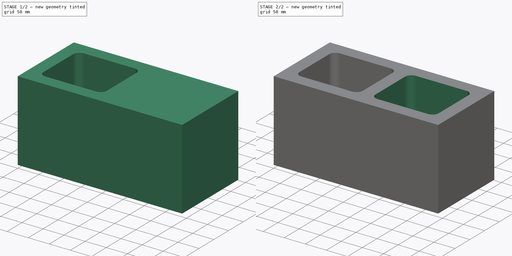
[diagram: build sequence overview — one tinted view per stage of 2, left to right]
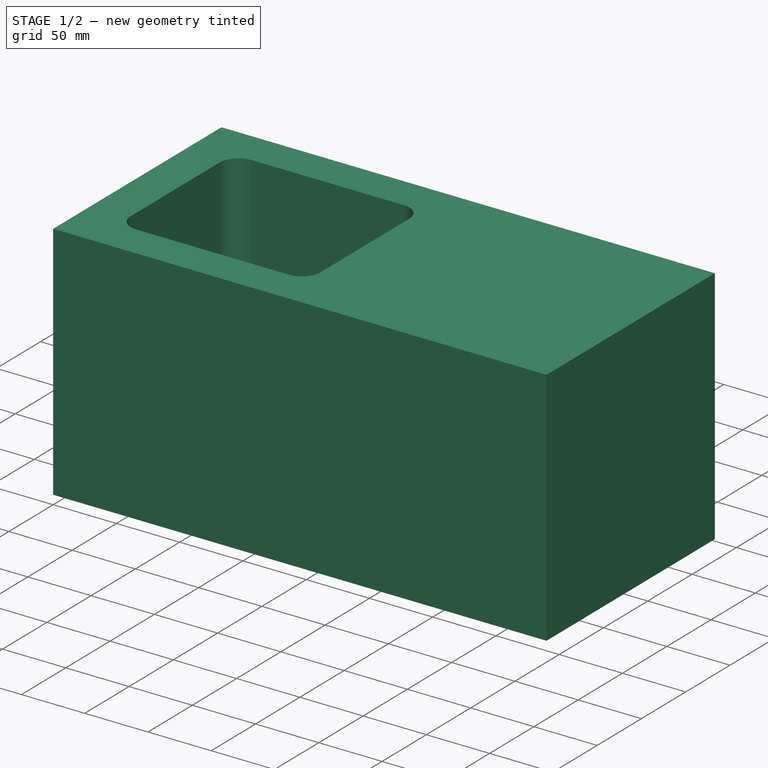
[diagram: stage 1 of 2 — iso view after this stage's code; geometry added in this stage tinted green]
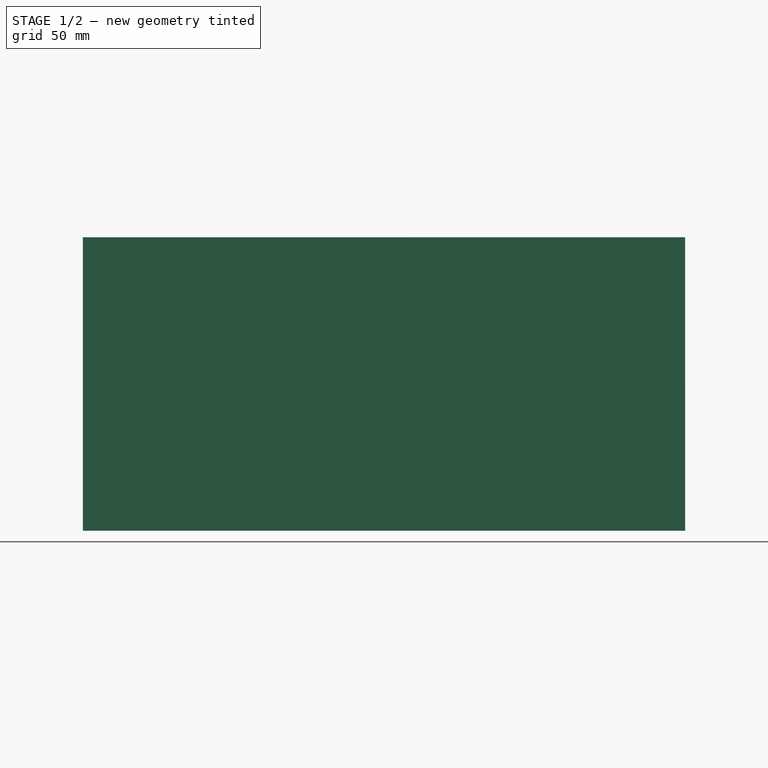
[diagram: stage 1 of 2 — front view after this stage's code; geometry added in this stage tinted green]
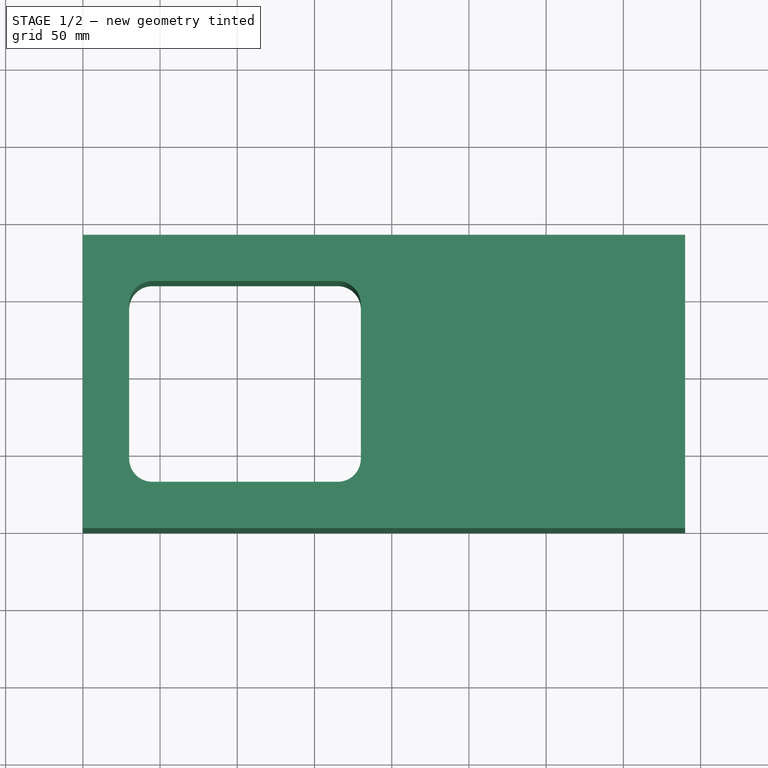
[diagram: stage 1 of 2 — top view after this stage's code; geometry added in this stage tinted green]
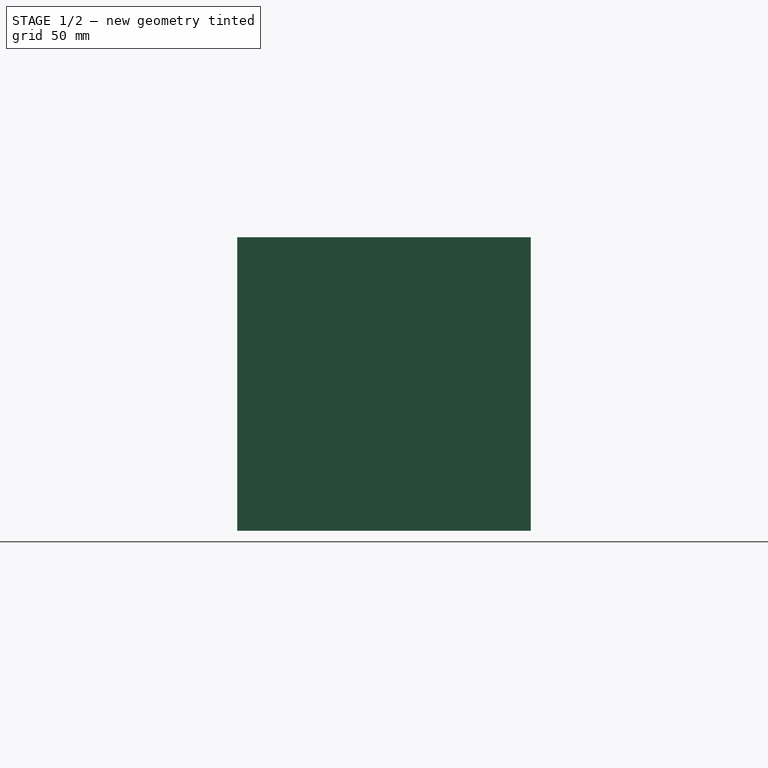
[diagram: stage 1 of 2 — right view after this stage's code; geometry added in this stage tinted green]
FCSTD DOCUMENT  (FreeCAD 0.17R10000 (Git))
Label:  Concrete block
License: All rights reserved
LicenseURL: http://en.wikipedia.org/wiki/All_rights_reserved
objects: Sketcher::SketchObject×2, PartDesign::Pad×1, PartDesign::Pocket×1, PartDesign::LinearPattern×1, PartDesign::Body×1
note: 8 computed .brp shape members not serialized (recipe doc carries the construction recipe); baked Part::Feature solids carry a one-line shape summary decoded from their .brp

FEATURE [Sketcher::SketchObject] Sketch
  MapMode = 5
  Support = -> [XY_Plane]
  sketch-geometry (4):
    g0: LineSegment StartX=0 StartY=0 StartZ=0 EndX=390 EndY=0 EndZ=0
    g1: LineSegment StartX=390 StartY=0 StartZ=0 EndX=390 EndY=190 EndZ=0
    g2: LineSegment StartX=390 StartY=190 StartZ=0 EndX=0 EndY=190 EndZ=0
    g3: LineSegment StartX=0 StartY=190 StartZ=0 EndX=0 EndY=0 EndZ=0
  constraints (11):
    c: Coincident(g0,g1)
    c: Coincident(g1,g2)
    c: Coincident(g2,g3)
    c: Coincident(g3,g0)
    c: Horizontal(g0)
    c: Horizontal(g2)
    c: Vertical(g1)
    c: Vertical(g3)
    c: Coincident(g0,g-1)
    c: DistanceX(g2,g2) = 390  'Length'
    c: DistanceY(g3,g3) = 190  'Width'
FEATURE [PartDesign::Pad] Pad
  Length = 190
  Length2 = 100
  Profile = -> Sketch
  Type = 0
FEATURE [Sketcher::SketchObject] Sketch001
  ExternalGeometry = -> [Pad]
  MapMode = 5
  Placement = pos=(0,0,190) rot=(0,0,1;0rad)
  Support = -> [Pad]
  expr: Constraints[20] = (Sketch.Constraints.Length - 9cm) / 2
  sketch-geometry (8):
    g0: LineSegment StartX=45 StartY=30 StartZ=0 EndX=165 EndY=30 EndZ=0
    g1: ArcOfCircle CenterX=165 CenterY=45 CenterZ=0 NormalX=0 NormalY=0 NormalZ=1 Radius=15 StartAngle=4.71239 EndAngle=6.28319
    g2: LineSegment StartX=180 StartY=45 StartZ=0 EndX=180 EndY=145 EndZ=0
    g3: ArcOfCircle CenterX=165 CenterY=145 CenterZ=0 NormalX=0 NormalY=0 NormalZ=1 Radius=15 StartAngle=0 EndAngle=1.5708
    g4: LineSegment StartX=165 StartY=160 StartZ=0 EndX=45 EndY=160 EndZ=0
    g5: ArcOfCircle CenterX=45 CenterY=145 CenterZ=0 NormalX=0 NormalY=0 NormalZ=1 Radius=15 StartAngle=1.5708 EndAngle=3.14159
    g6: LineSegment StartX=30 StartY=145 StartZ=0 EndX=30 EndY=45 EndZ=0
    g7: ArcOfCircle CenterX=45 CenterY=45 CenterZ=0 NormalX=0 NormalY=0 NormalZ=1 Radius=15 StartAngle=3.14159 EndAngle=4.71239
  constraints (21):
    c: Horizontal(g0)
    c: Tangent(g0,g1) = -1.5708
    c: Tangent(g1,g2) = -1.5708
    c: Tangent(g2,g3) = -1.5708
    c: Tangent(g3,g4) = -1.5708
    c: Tangent(g4,g5) = -1.5708
    c: Tangent(g5,g6) = -1.5708
    c: Tangent(g6,g7) = -1.5708
    c: Coincident(g7,g0)
    c: Vertical(g6)
    c: Horizontal(g4)
    c: Vertical(g2)
    c: Equal(g5,g3)
    c: Equal(g3,g7)
    c: Equal(g7,g1)
    c: Tangent(g7,g0,g0) = -1.5708
    c: Radius(g7) = 15
    c: DistanceY(g4,g-4) = 30
    c: DistanceY(g-1,g0) = 30
    c: DistanceX(g-4,g5) = 30
    c: DistanceX(g6,g1) = 150
FEATURE [PartDesign::Pocket] Pocket
  BaseFeature = -> Pad
  Length = 190
  Profile = -> Sketch001
  Type = 0
  expr: Length = Pad.Length
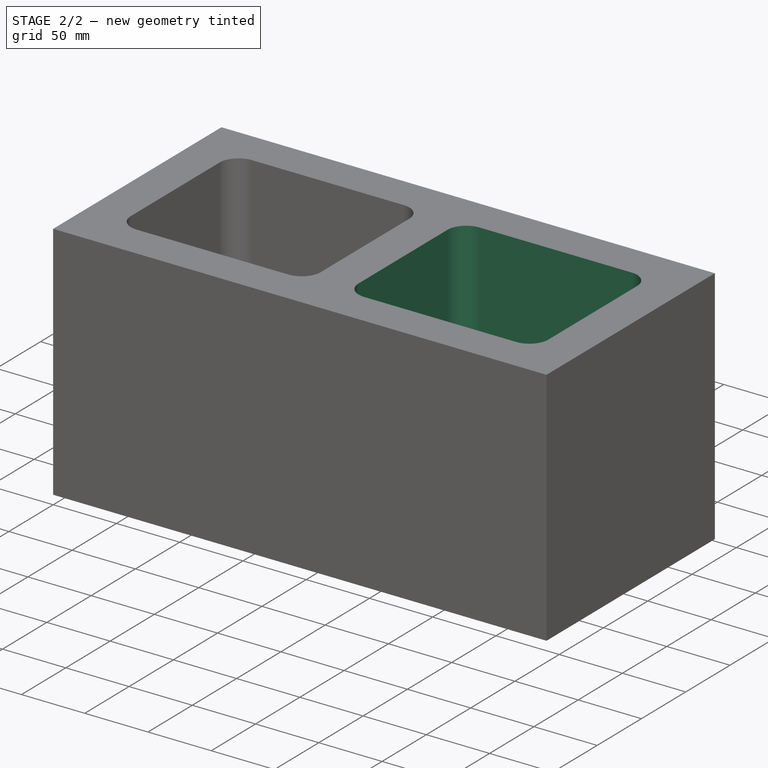
[diagram: stage 2 of 2 — iso view after this stage's code; geometry added in this stage tinted green]
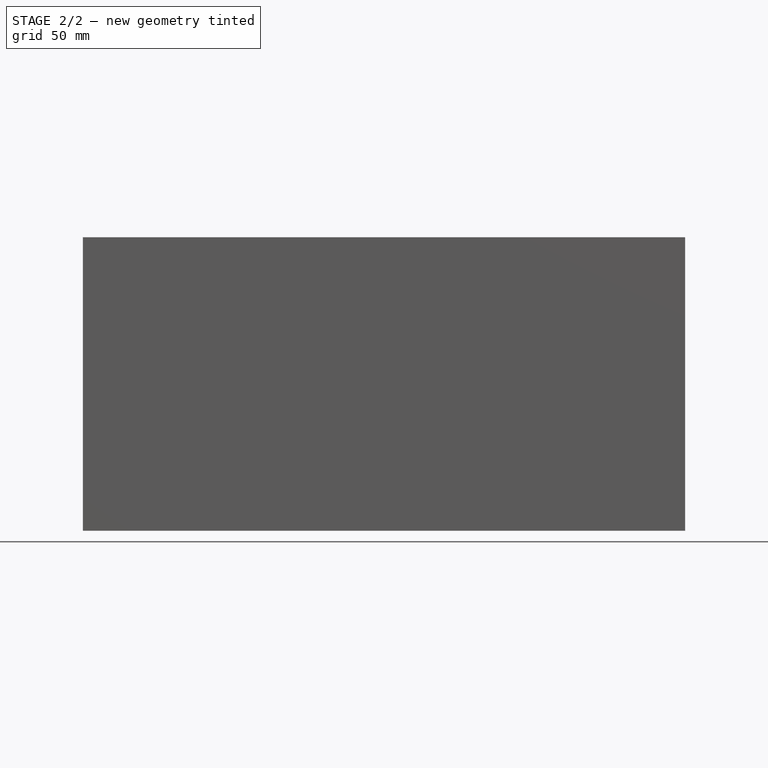
[diagram: stage 2 of 2 — front view after this stage's code; geometry added in this stage tinted green]
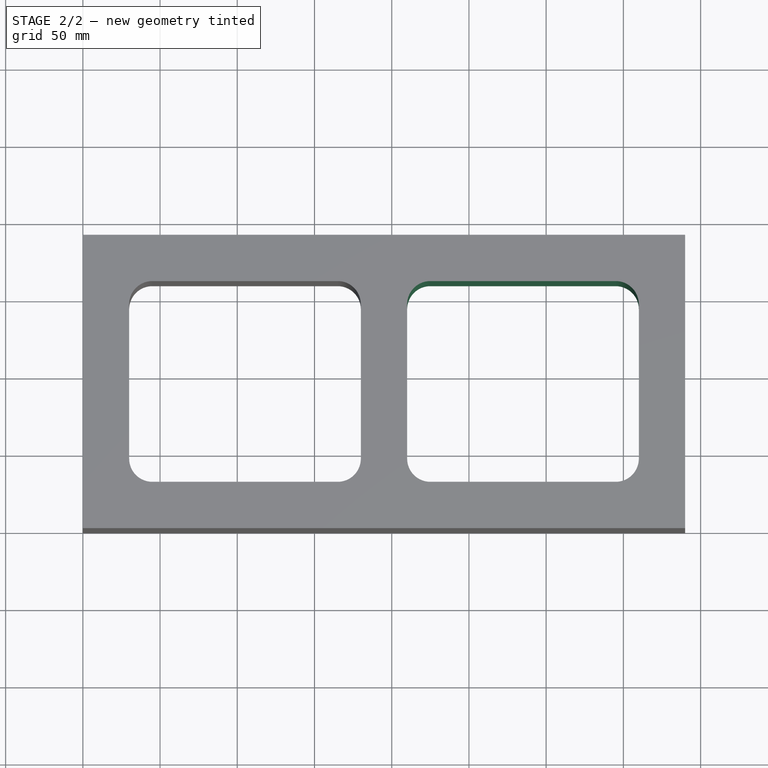
[diagram: stage 2 of 2 — top view after this stage's code; geometry added in this stage tinted green]
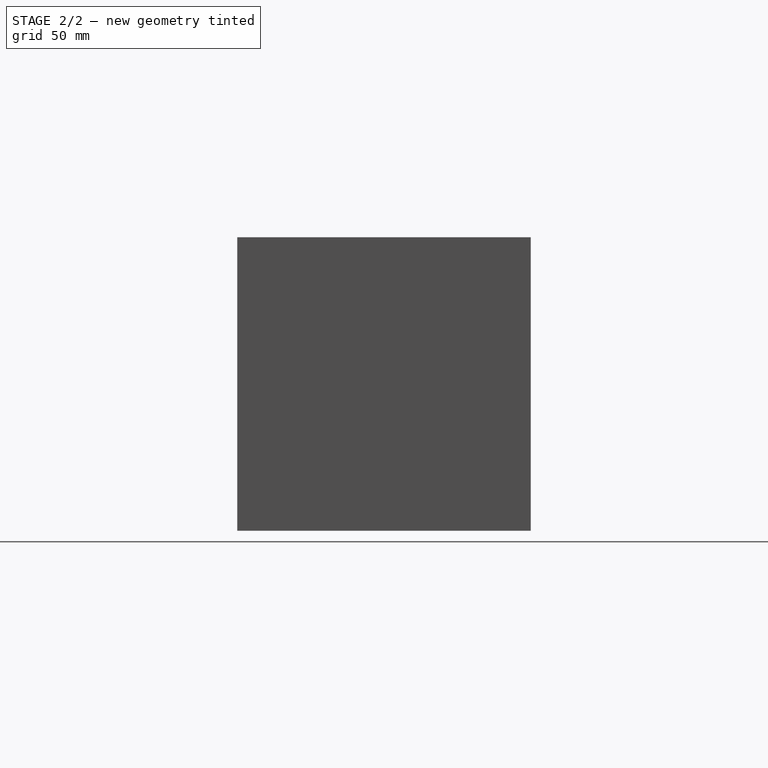
[diagram: stage 2 of 2 — right view after this stage's code; geometry added in this stage tinted green]
FEATURE [PartDesign::LinearPattern] LinearPattern
  BaseFeature = -> Pocket
  Direction = -> Sketch001 [H_Axis]
  Length = 180
  Occurrences = 2
  Originals = -> [Pocket]
  expr: Length = Sketch.Constraints.Length / 2 - 1.5cm
FEATURE [PartDesign::Body] Body
  Group = -> [Sketch,Pad,Sketch001,Pocket,LinearPattern]
  Origin = -> BodyOrigin
  Tip = -> LinearPattern
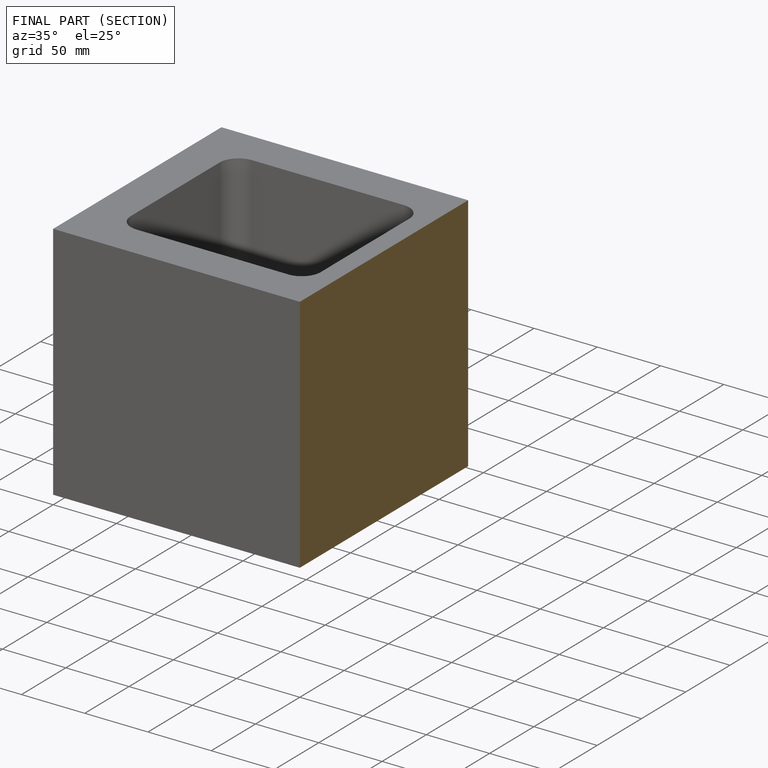
[diagram: finished part — half-section view (interior)]
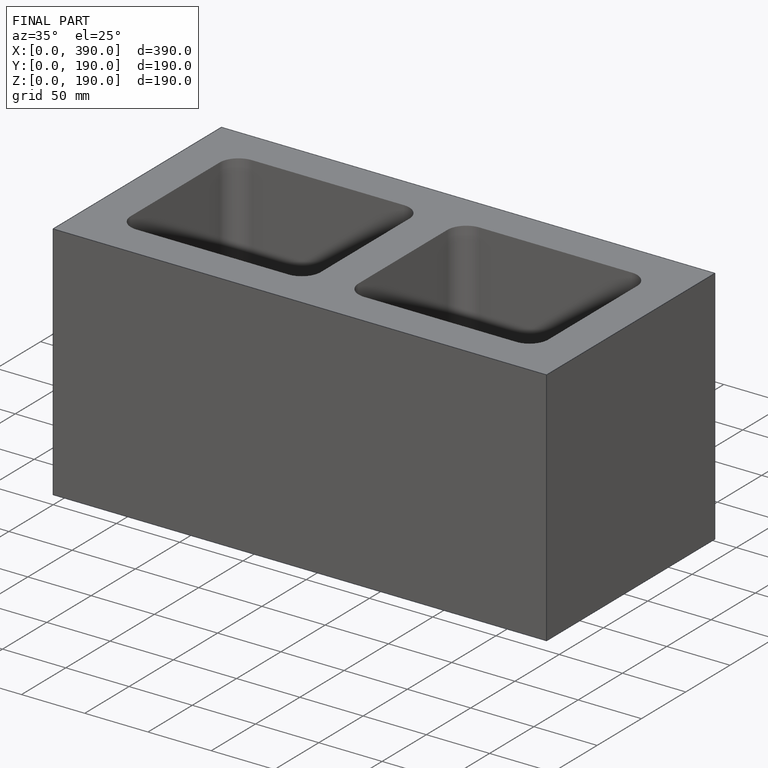
[diagram: finished part — iso view with bounding-box wireframe]
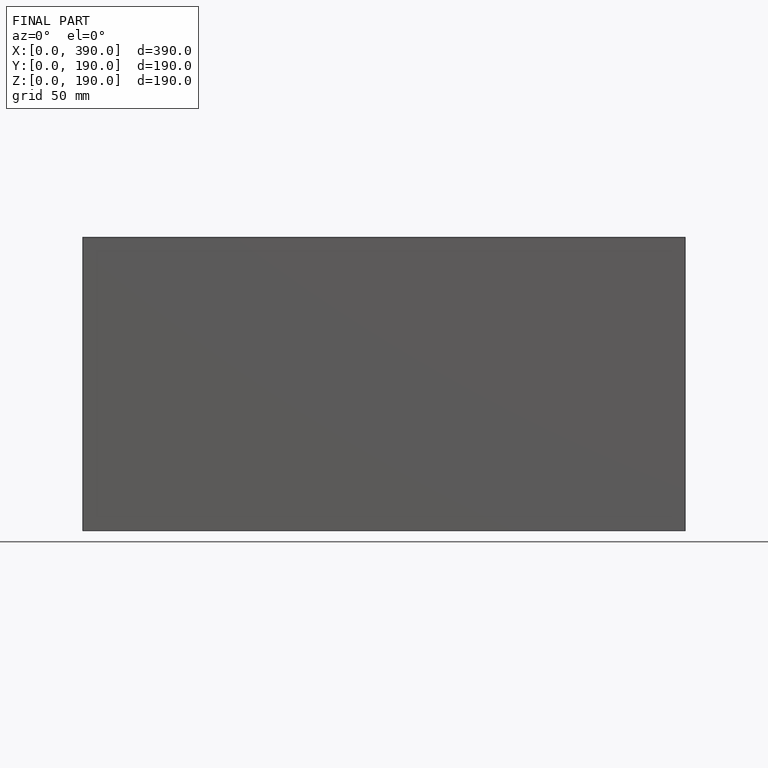
[diagram: finished part — front view with bounding-box wireframe]
